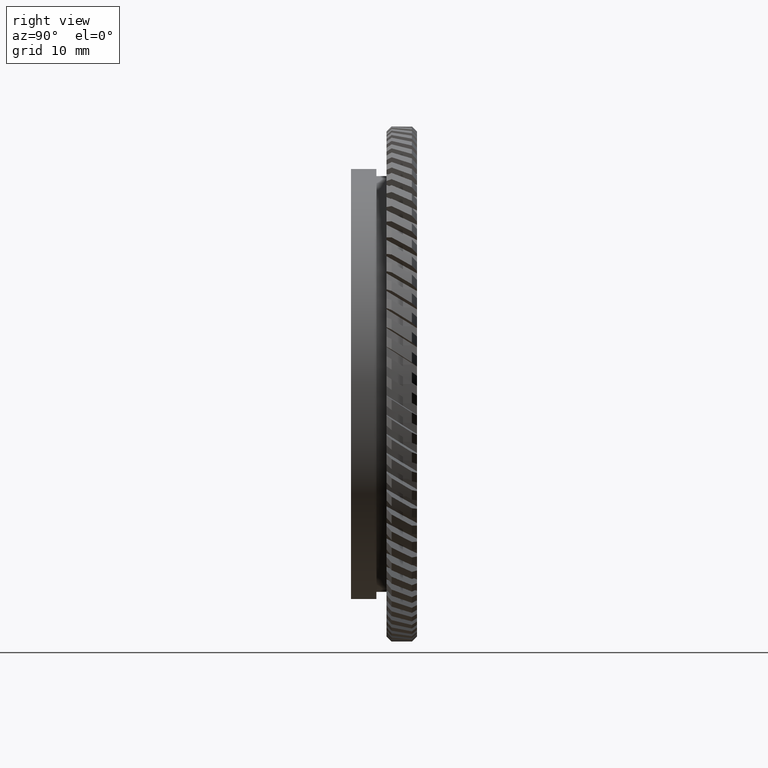
[diagram: clean part render]
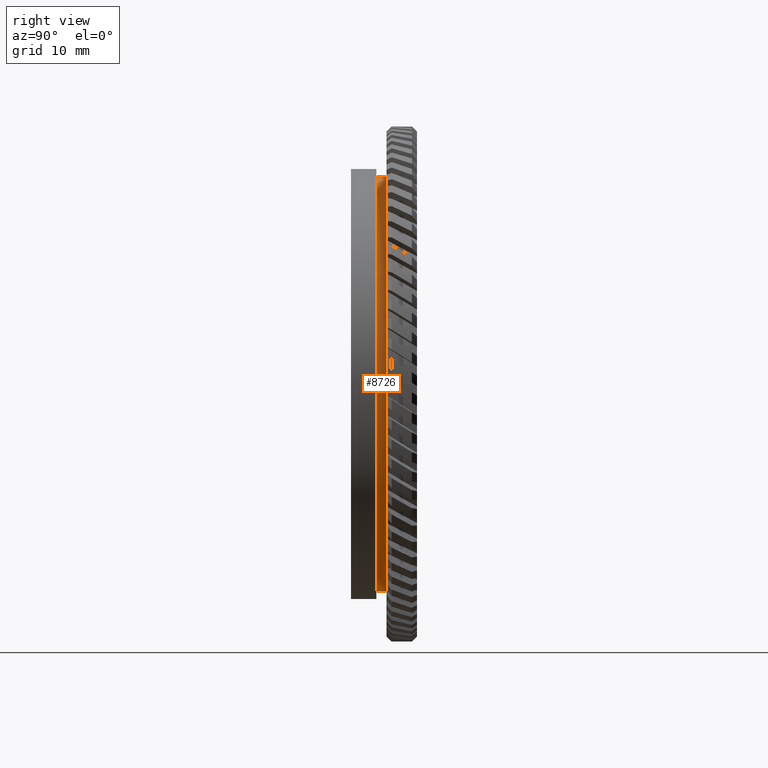
[diagram: same view with one face highlighted and labeled with its STEP entity id]
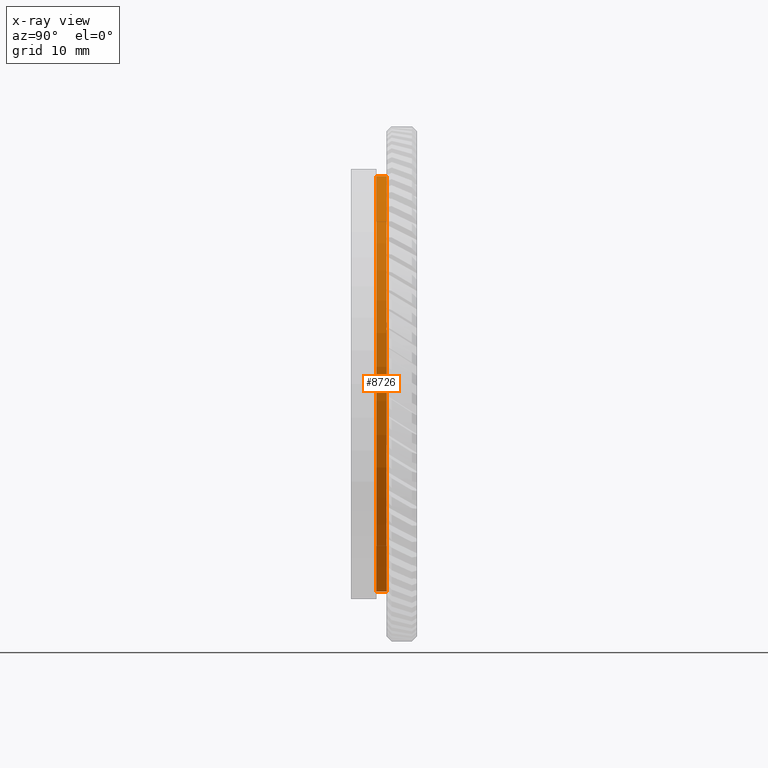
[diagram: x-ray of the same camera — body ghosted, the highlighted face saturated]
A machine part, right view. The second image highlights one B-rep face of the part: STEP entity #8726.
The next image is the same camera in x-ray: the body ghosted, the highlighted face saturated — about 0% of this face is hidden behind the body in this view.
In plain terms, the highlighted cylindrical surface (partial cylindrical patch) has radius 20.5 mm, axis along (-0, 1, -0).
Its self-contained STEP definition (entity closure, byte-faithful):
#493 = VERTEX_POINT ( 'NONE', #12549 ) ;
#723 = ORIENTED_EDGE ( 'NONE', *, *, #8350, .T. ) ;
#825 = LINE ( 'NONE', #15407, #8602 ) ;
#920 = CARTESIAN_POINT ( 'NONE',  ( 0.0000000000000000000, 66.62876213592232900, 20.50000000000000700 ) ) ;
#978 = DIRECTION ( 'NONE',  ( -0.0000000000000000000, 1.000000000000000000, -0.0000000000000000000 ) ) ;
#1337 = AXIS2_PLACEMENT_3D ( 'NONE', #14024, #17098, #15554 ) ;
#2167 = AXIS2_PLACEMENT_3D ( 'NONE', #14875, #978, #11755 ) ;
#2777 = CARTESIAN_POINT ( 'NONE',  ( 0.0000000000000000000, 18.87125740523061500, 20.50000000000000700 ) ) ;
#2982 = CARTESIAN_POINT ( 'NONE',  ( 0.0000000000000000000, 66.62876213592232900, 0.0000000000000000000 ) ) ;
#3402 = EDGE_CURVE ( 'NONE', #493, #15855, #10978, .T. ) ;
#4763 = EDGE_CURVE ( 'NONE', #15855, #20115, #8964, .T. ) ;
#4832 = DIRECTION ( 'NONE',  ( 0.0000000000000000000, 0.0000000000000000000, 1.000000000000000000 ) ) ;
#5183 = CYLINDRICAL_SURFACE ( 'NONE', #6133, 20.50000000000000700 ) ;
#5613 = DIRECTION ( 'NONE',  ( -0.0000000000000000000, 1.000000000000000000, -0.0000000000000000000 ) ) ;
#6133 = AXIS2_PLACEMENT_3D ( 'NONE', #2982, #10872, #4832 ) ;
#6350 = VECTOR ( 'NONE', #5613, 1000.000000000000000 ) ;
#6815 = CARTESIAN_POINT ( 'NONE',  ( 2.510525938252074900E-015, 17.87125740523061500, -20.50000000000000700 ) ) ;
#7016 = CARTESIAN_POINT ( 'NONE',  ( 2.510525938252074900E-015, 18.87125740523061500, -20.50000000000000700 ) ) ;
#8289 = ORIENTED_EDGE ( 'NONE', *, *, #4763, .F. ) ;
#8350 = EDGE_CURVE ( 'NONE', #16906, #20115, #825, .T. ) ;
#8602 = VECTOR ( 'NONE', #14004, 1000.000000000000000 ) ;
#8726 = ADVANCED_FACE ( 'NONE', ( #15678 ), #5183, .T. ) ;
#8964 = CIRCLE ( 'NONE', #2167, 20.50000000000000700 ) ;
#8965 = CIRCLE ( 'NONE', #1337, 20.50000000000000700 ) ;
#10872 = DIRECTION ( 'NONE',  ( -0.0000000000000000000, 1.000000000000000000, -0.0000000000000000000 ) ) ;
#10978 = LINE ( 'NONE', #920, #6350 ) ;
#11755 = DIRECTION ( 'NONE',  ( 0.0000000000000000000, 0.0000000000000000000, 1.000000000000000000 ) ) ;
#12549 = CARTESIAN_POINT ( 'NONE',  ( 0.0000000000000000000, 17.87125740523061500, 20.50000000000000700 ) ) ;
#14004 = DIRECTION ( 'NONE',  ( -0.0000000000000000000, 1.000000000000000000, -0.0000000000000000000 ) ) ;
#14024 = CARTESIAN_POINT ( 'NONE',  ( 0.0000000000000000000, 17.87125740523061500, 0.0000000000000000000 ) ) ;
#14875 = CARTESIAN_POINT ( 'NONE',  ( 0.0000000000000000000, 18.87125740523061500, 0.0000000000000000000 ) ) ;
#15407 = CARTESIAN_POINT ( 'NONE',  ( 2.510525938252074900E-015, 66.62876213592232900, -20.50000000000000700 ) ) ;
#15554 = DIRECTION ( 'NONE',  ( 0.0000000000000000000, 0.0000000000000000000, 1.000000000000000000 ) ) ;
#15678 = FACE_OUTER_BOUND ( 'NONE', #17968, .T. ) ;
#15731 = ORIENTED_EDGE ( 'NONE', *, *, #18181, .T. ) ;
#15855 = VERTEX_POINT ( 'NONE', #2777 ) ;
#16906 = VERTEX_POINT ( 'NONE', #6815 ) ;
#17098 = DIRECTION ( 'NONE',  ( -0.0000000000000000000, 1.000000000000000000, -0.0000000000000000000 ) ) ;
#17939 = ORIENTED_EDGE ( 'NONE', *, *, #3402, .F. ) ;
#17968 = EDGE_LOOP ( 'NONE', ( #15731, #723, #8289, #17939 ) ) ;
#18181 = EDGE_CURVE ( 'NONE', #493, #16906, #8965, .T. ) ;
#20115 = VERTEX_POINT ( 'NONE', #7016 ) ;